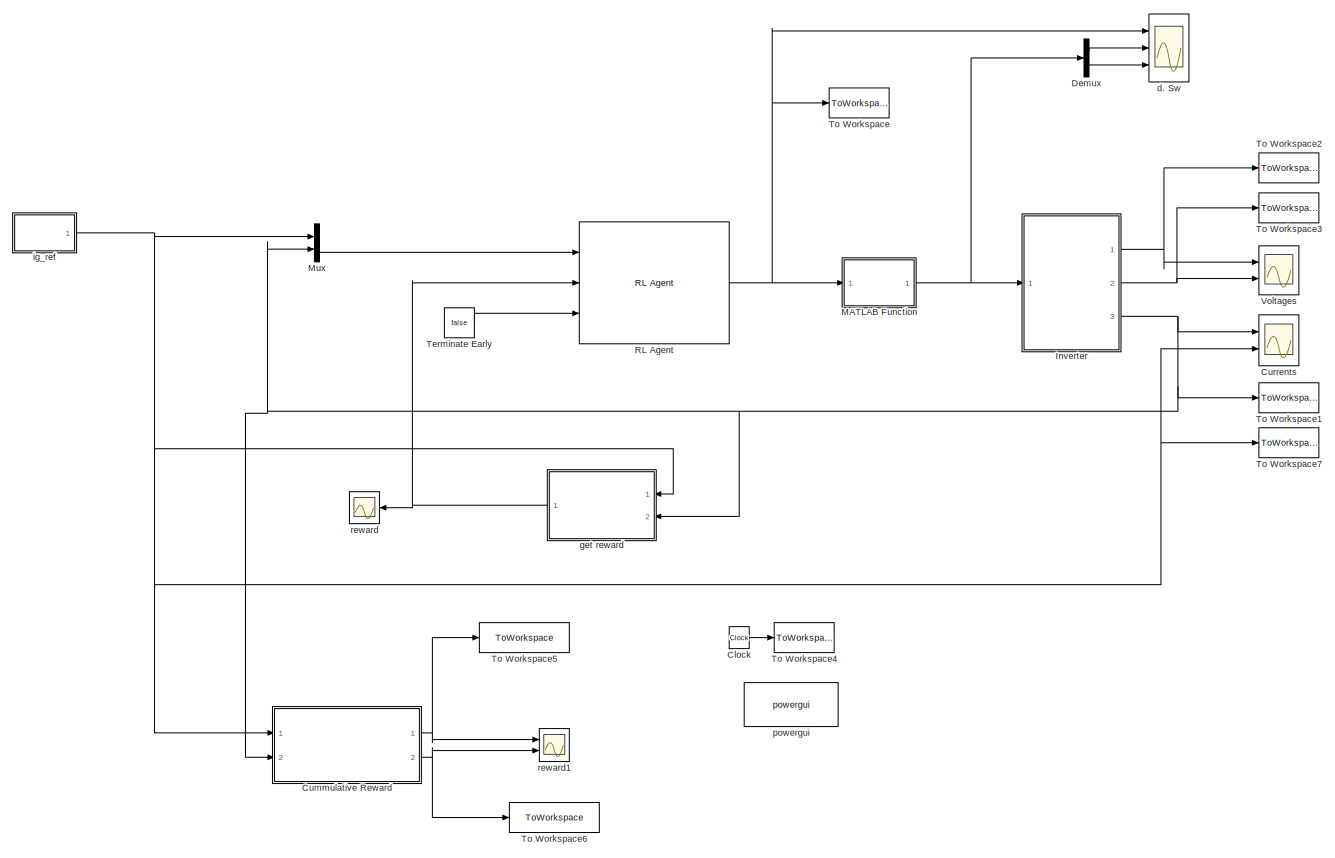
[diagram: root canvas - part 1/1, most of the canvas]
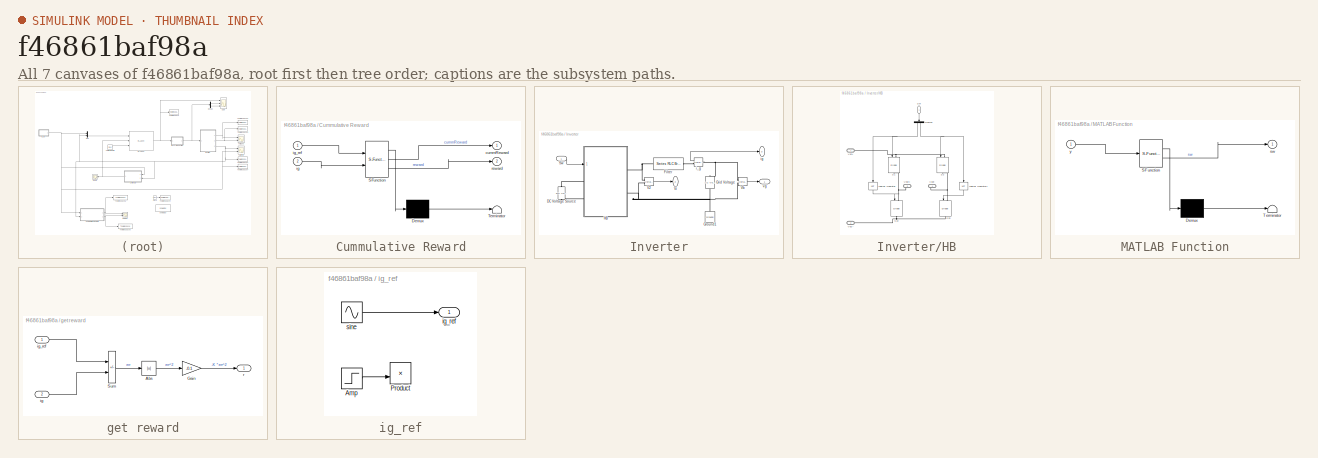
[diagram: thumbnail index - all 7 canvases of the model, root first then tree order]
MODEL slx_f46861baf98a
KIND model
CONFIG AbsTol = auto
CONFIG EnableMultiTasking = off
CONFIG FixedStep = auto
CONFIG MaxStep = auto
CONFIG MinStep = auto
CONFIG RelTol = 1e-3
CONFIG SampleTimeConstraint = Unconstrained
CONFIG SolverName = VariableStepAuto
CONFIG StartTime = 0.0
CONFIG StopTime = 0.1
BLOCK [Clock] Clock
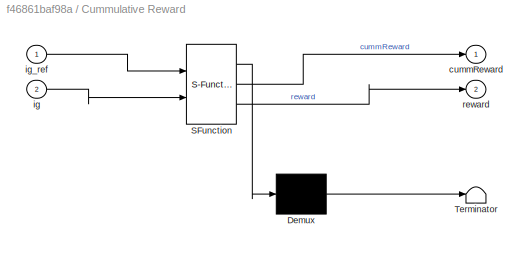
BLOCK [SubSystem] Cummulative Reward
  ErrorFcn = Stateflow.Translate.translate
  PermitHierarchicalResolution = ExplicitOnly
  Ports = [2, 2]
  RequestExecContextInheritance = off
  SFBlockType = MATLAB Function
  SystemSampleTime = Ts
  TreatAsAtomicUnit = on
BLOCK [Demux] Cummulative Reward/ Demux 
  Outputs = 1
  Ports = [1, 1]
BLOCK [S-Function] Cummulative Reward/ SFunction 
  EnableBusSupport = on
  FunctionName = sf_sfun
  PortCounts = [2 3]
  Ports = [2, 3]
  SFcnIsStateOwnerBlock = off
  SFunctionDeploymentMode = off
  Tag = Stateflow S-Function 1
BLOCK [Terminator] Cummulative Reward/ Terminator 
BLOCK [Outport] Cummulative Reward/cummReward
BLOCK [Inport] Cummulative Reward/ig
  Port = 2
BLOCK [Inport] Cummulative Reward/ig_ref
BLOCK [Outport] Cummulative Reward/reward
  Port = 2
BLOCK [Scope] Currents
  Floating = off
  NumInputPorts = 2
  Ports = [2]
  ScopeSpecificationString = Simulink.scopes.TimeScopeBlockCfg('CurrentConfiguration', extmgr.ConfigurationSet(extmgr.Configuration('Core','General UI',true),extmgr.Configuration('Core','Source UI',true),extmgr.Configuration('Sources','WiredSimulink',true,'DataLogging',true,'DataLoggingVariableName','ScopeData1'),extmgr.Configuration('Visuals','Time Domain',true,'SerializedDisplays',{struct('MinYLimReal','-27.40256','MaxYLimR...<+1559ch>
BLOCK [Demux] Demux
  Outputs = 2
  Ports = [1, 2]
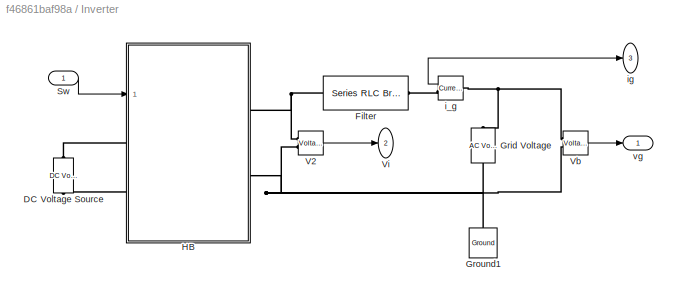
BLOCK [SubSystem] Inverter
  Ports = [1, 3]
  RequestExecContextInheritance = off
BLOCK [Reference] Inverter/DC Voltage Source  REF=spsDCVoltageSourceLib/DC Voltage Source
  NameLocation = left
  Ports = [0, 0, 0, 0, 0, 1, 1]
  SourceBlock = spsDCVoltageSourceLib/DC Voltage Source
  SourceProductBaseCode = PS
  SourceType = DC Voltage Source
BLOCK [Reference] Inverter/Filter  REF=spsSeriesRLCBranchLib/Series RLC Branch
  Ports = [0, 0, 0, 0, 0, 1, 1]
  SourceBlock = spsSeriesRLCBranchLib/Series RLC Branch
  SourceProductBaseCode = PS
  SourceType = Series RLC Branch
BLOCK [Reference] Inverter/Grid Voltage  REF=spsACVoltageSourceLib/AC Voltage Source
  NameLocation = right
  Ports = [0, 0, 0, 0, 0, 1, 1]
  SourceBlock = spsACVoltageSourceLib/AC Voltage Source
  SourceProductBaseCode = PS
  SourceType = AC Voltage Source
BLOCK [Reference] Inverter/Ground1  REF=spsGroundLib/Ground
  NameLocation = right
  Ports = [0, 0, 0, 0, 0, 1]
  SourceBlock = spsGroundLib/Ground
  SourceProductBaseCode = PS
  SourceType = Ground
BLOCK [SubSystem] Inverter/HB
  Ports = [1, 0, 0, 0, 0, 2, 2]
  RequestExecContextInheritance = off
BLOCK [Demux] Inverter/HB/Demux
  NameLocation = left
  Outputs = 2
  Ports = [1, 2]
BLOCK [Logic] Inverter/HB/Logical Operator
  AllPortsSameDT = off
  NameLocation = left
  Operator = NOT
  OutDataTypeStr = boolean
  Ports = [1, 1]
BLOCK [Logic] Inverter/HB/Logical Operator1
  AllPortsSameDT = off
  NameLocation = left
  Operator = NOT
  OutDataTypeStr = boolean
  Ports = [1, 1]
BLOCK [Reference] Inverter/HB/S1  REF=spsIGBTDiodeLib/IGBT//Diode
  NameLocation = left
  Ports = [1, 0, 0, 0, 0, 1, 1]
  SourceBlock = spsIGBTDiodeLib/IGBT//Diode
  SourceProductBaseCode = PS
  SourceType = IGBT/Diode
BLOCK [Reference] Inverter/HB/S1n  REF=spsIGBTDiodeLib/IGBT//Diode
  NameLocation = left
  Ports = [1, 0, 0, 0, 0, 1, 1]
  SourceBlock = spsIGBTDiodeLib/IGBT//Diode
  SourceProductBaseCode = PS
  SourceType = IGBT/Diode
BLOCK [Reference] Inverter/HB/S2  REF=spsIGBTDiodeLib/IGBT//Diode
  NameLocation = left
  Ports = [1, 0, 0, 0, 0, 1, 1]
  SourceBlock = spsIGBTDiodeLib/IGBT//Diode
  SourceProductBaseCode = PS
  SourceType = IGBT/Diode
BLOCK [Reference] Inverter/HB/S2n  REF=spsIGBTDiodeLib/IGBT//Diode
  NameLocation = left
  Ports = [1, 0, 0, 0, 0, 1, 1]
  SourceBlock = spsIGBTDiodeLib/IGBT//Diode
  SourceProductBaseCode = PS
  SourceType = IGBT/Diode
BLOCK [Inport] Inverter/HB/Sw
  NameLocation = left
BLOCK [PMIOPort] Inverter/HB/Vdc+
  NameLocation = top
  Side = Left
BLOCK [PMIOPort] Inverter/HB/Vdc--
  Port = 2
  Side = Left
BLOCK [PMIOPort] Inverter/HB/Vout+
  NameLocation = top
  Port = 3
  Side = Right
BLOCK [PMIOPort] Inverter/HB/Vout-
  NameLocation = top
  Port = 4
  Side = Right
BLOCK [Inport] Inverter/Sw
BLOCK [Reference] Inverter/V2  REF=spsVoltageMeasurementLib/Voltage Measurement
  AttributesFormatString = \n
  Ports = [0, 1, 0, 0, 0, 2]
  SourceBlock = spsVoltageMeasurementLib/Voltage Measurement
  SourceProductBaseCode = PS
  SourceType = Voltage Measurement
  Tag = PoWeRsYsTeMmEaSuReMeNt
BLOCK [Reference] Inverter/Vb  REF=spsVoltageMeasurementLib/Voltage Measurement
  AttributesFormatString = \n
  Ports = [0, 1, 0, 0, 0, 2]
  SourceBlock = spsVoltageMeasurementLib/Voltage Measurement
  SourceProductBaseCode = PS
  SourceType = Voltage Measurement
  Tag = PoWeRsYsTeMmEaSuReMeNt
BLOCK [Outport] Inverter/Vi
  Port = 2
  VectorParamsAs1DForOutWhenUnconnected = off
BLOCK [Reference] Inverter/i_g  REF=spsCurrentMeasurementLib/Current Measurement
  Ports = [0, 1, 0, 0, 0, 1, 1]
  SourceBlock = spsCurrentMeasurementLib/Current Measurement
  SourceProductBaseCode = PS
  SourceType = Current Measurement
  UserDataPersistent = on
BLOCK [Outport] Inverter/ig
  Port = 3
  VectorParamsAs1DForOutWhenUnconnected = off
BLOCK [Outport] Inverter/vg
  VectorParamsAs1DForOutWhenUnconnected = off
BLOCK [SubSystem] MATLAB Function
  ErrorFcn = Stateflow.Translate.translate
  PermitHierarchicalResolution = ExplicitOnly
  Ports = [1, 1]
  RequestExecContextInheritance = off
  SFBlockType = MATLAB Function
  SystemSampleTime = Ts
  TreatAsAtomicUnit = on
BLOCK [Demux] MATLAB Function/ Demux 
  Outputs = 1
  Ports = [1, 1]
BLOCK [S-Function] MATLAB Function/ SFunction 
  EnableBusSupport = on
  FunctionName = sf_sfun
  PortCounts = [1 2]
  Ports = [1, 2]
  SFcnIsStateOwnerBlock = off
  SFunctionDeploymentMode = off
  Tag = Stateflow S-Function 2
BLOCK [Terminator] MATLAB Function/ Terminator 
BLOCK [Outport] MATLAB Function/sw
BLOCK [Inport] MATLAB Function/y
BLOCK [Mux] Mux
  DisplayOption = bar
  Inputs = 2
  Ports = [2, 1]
BLOCK [Reference] RL Agent  REF=rllib/RL Agent
  Ports = [3, 1]
  SourceBlock = rllib/RL Agent
  SourceProductBaseCode = RL
  SourceType = RL Agent
BLOCK [Constant] Terminate Early
  Value = false
BLOCK [ToWorkspace] To Workspace
  FixptAsFi = on
  MaxDataPoints = inf
  Ports = [1]
  SampleTime = Ts
  VariableName = d
BLOCK [ToWorkspace] To Workspace1
  FixptAsFi = on
  MaxDataPoints = inf
  Ports = [1]
  SampleTime = Ts
  VariableName = ig
BLOCK [ToWorkspace] To Workspace2
  FixptAsFi = on
  MaxDataPoints = inf
  Ports = [1]
  SampleTime = Ts
  VariableName = vg
BLOCK [ToWorkspace] To Workspace3
  FixptAsFi = on
  MaxDataPoints = inf
  Ports = [1]
  SampleTime = Ts
  VariableName = vi
BLOCK [ToWorkspace] To Workspace4
  FixptAsFi = on
  MaxDataPoints = inf
  Ports = [1]
  SampleTime = Ts
  VariableName = time
BLOCK [ToWorkspace] To Workspace5
  FixptAsFi = on
  MaxDataPoints = inf
  Ports = [1]
  SampleTime = Ts
  VariableName = sumRewards
BLOCK [ToWorkspace] To Workspace6
  FixptAsFi = on
  MaxDataPoints = inf
  Ports = [1]
  SampleTime = Ts
  VariableName = rewards
BLOCK [ToWorkspace] To Workspace7
  FixptAsFi = on
  MaxDataPoints = inf
  Ports = [1]
  SampleTime = Ts
  VariableName = ig_ref
BLOCK [Scope] Voltages
  Floating = off
  NumInputPorts = 2
  Ports = [2]
  ScopeSpecificationString = Simulink.scopes.TimeScopeBlockCfg('CurrentConfiguration', extmgr.ConfigurationSet(extmgr.Configuration('Core','General UI',true),extmgr.Configuration('Core','Source UI',true),extmgr.Configuration('Sources','WiredSimulink',true,'DataLogging',true,'DataLoggingVariableName','ScopeData2'),extmgr.Configuration('Visuals','Time Domain',true,'SerializedDisplays',{struct('MinYLimReal','-424.26407','MaxYLim...<+2412ch>
BLOCK [Scope] d. Sw
  Floating = off
  NumInputPorts = 3
  Ports = [3]
  ScopeSpecificationString = Simulink.scopes.TimeScopeBlockCfg('CurrentConfiguration', extmgr.ConfigurationSet(extmgr.Configuration('Core','General UI',true),extmgr.Configuration('Core','Source UI',true),extmgr.Configuration('Sources','WiredSimulink',true,'DataLogging',true,'DataLoggingVariableName','ScopeData3'),extmgr.Configuration('Visuals','Time Domain',true,'SerializedDisplays',{struct('MinYLimReal','-0.375','MaxYLimReal...<+2824ch>
BLOCK [SubSystem] get reward
  Ports = [2, 1]
  RequestExecContextInheritance = off
BLOCK [Abs] get reward/Abs
  SaturateOnIntegerOverflow = off
BLOCK [Gain] get reward/Gain
  Gain = -0.1
BLOCK [Sum] get reward/Sum
  IconShape = rectangular
  Inputs = +-
  Ports = [2, 1]
BLOCK [Inport] get reward/ig
  Port = 2
BLOCK [Inport] get reward/ig_ref
BLOCK [Outport] get reward/r
BLOCK [SubSystem] ig_ref
  Ports = [0, 1]
  RequestExecContextInheritance = off
BLOCK [Step] ig_ref/Amp
  After = -Iref
  Before = Iref
  Commented = on
  SampleTime = 0
  Time = 0.055
BLOCK [Product] ig_ref/Product
  Commented = on
  Ports = [2, 1]
BLOCK [Outport] ig_ref/ig_ref
  VectorParamsAs1DForOutWhenUnconnected = off
BLOCK [Sin] ig_ref/sine
  Amplitude = Iref
  Frequency = 2*pi*fo
  Ports = [0, 1]
  SampleTime = 0
BLOCK [Reference] powergui  REF=spspowerguiLib/powergui
  Ports = []
  SourceBlock = spspowerguiLib/powergui
  SourceProductBaseCode = PS
  SourceType = PSB option menu block
BLOCK [Scope] reward
  Floating = off
  NumInputPorts = 1
  Ports = [1]
  ScopeSpecificationString = Simulink.scopes.TimeScopeBlockCfg('CurrentConfiguration', extmgr.ConfigurationSet(extmgr.Configuration('Core','General UI',true),extmgr.Configuration('Core','Source UI',true),extmgr.Configuration('Sources','WiredSimulink',true,'DataLoggingVariableName','ScopeData1'),extmgr.Configuration('Visuals','Time Domain',true,'SerializedDisplays',{struct('MinYLimReal','-0.42577','MaxYLimReal','0.04731','YLab...<+1415ch>
BLOCK [Scope] reward1
  Floating = off
  NumInputPorts = 2
  Ports = [2]
  ScopeSpecificationString = Simulink.scopes.TimeScopeBlockCfg('CurrentConfiguration', extmgr.ConfigurationSet(extmgr.Configuration('Core','General UI',true),extmgr.Configuration('Core','Source UI',true),extmgr.Configuration('Sources','WiredSimulink',true,'DataLoggingVariableName','ScopeData2'),extmgr.Configuration('Visuals','Time Domain',true,'SerializedDisplays',{struct('MinYLimReal','-93.59042','MaxYLimReal','10.39894','YL...<+2078ch>
LINE Clock:1 -> To Workspace4:1
NET Cummulative Reward:1 -> To Workspace5:1, reward1:1
NET Cummulative Reward:2 -> To Workspace6:1, reward1:2
LINE Demux:1 -> d. Sw:2
LINE Demux:2 -> d. Sw:3
NET Inverter/HB/Demux:1 -> Inverter/HB/Logical Operator:1, Inverter/HB/S1:1
NET Inverter/HB/Demux:2 -> Inverter/HB/Logical Operator1:1, Inverter/HB/S2:1
LINE Inverter/HB/Logical Operator1:1 -> Inverter/HB/S2n:1
LINE Inverter/HB/Logical Operator:1 -> Inverter/HB/S1n:1
LINE Inverter/HB/Sw:1 -> Inverter/HB/Demux:1
LINE Inverter/Sw:1 -> Inverter/HB:1
LINE Inverter/V2:1 -> Inverter/Vi:1
LINE Inverter/Vb:1 -> Inverter/vg:1
LINE Inverter/i_g:1 -> Inverter/ig:1
NET Inverter:1 -> To Workspace2:1, Voltages:1
NET Inverter:2 -> To Workspace3:1, Voltages:2
NET Inverter:3 -> Cummulative Reward:2, Currents:1, Mux:2, To Workspace1:1, get reward:2
NET MATLAB Function:1 -> Demux:1, Inverter:1
LINE Mux:1 -> RL Agent:1
NET RL Agent:1 -> MATLAB Function:1, To Workspace:1, d. Sw:1
LINE Terminate Early:1 -> RL Agent:3
LINE get reward/Abs:1 -> get reward/Gain:1
LINE get reward/Gain:1 -> get reward/r:1
LINE get reward/Sum:1 -> get reward/Abs:1
LINE get reward/ig:1 -> get reward/Sum:2
LINE get reward/ig_ref:1 -> get reward/Sum:1
NET get reward:1 -> RL Agent:2, reward:1
LINE ig_ref/Amp:1 -> ig_ref/Product:2
LINE ig_ref/sine:1 -> ig_ref/ig_ref:1
NET ig_ref:1 -> Cummulative Reward:1, Currents:2, Mux:1, To Workspace7:1, get reward:1
PLINE Inverter/DC Voltage Source:LConn1 -- Inverter/HB:LConn2
PLINE Inverter/DC Voltage Source:RConn1 -- Inverter/HB:LConn1
PNET net1: Inverter/Filter:LConn1 -- Inverter/HB:RConn1 -- Inverter/V2:LConn1
PLINE Inverter/Filter:RConn1 -- Inverter/i_g:RConn1
PNET net2: Inverter/Grid Voltage:LConn1 -- Inverter/Ground1:LConn1 -- Inverter/HB:RConn2 -- Inverter/V2:LConn2 -- Inverter/Vb:LConn2
PNET net3: Inverter/Grid Voltage:RConn1 -- Inverter/Vb:LConn1 -- Inverter/i_g:LConn1
PNET net4: Inverter/HB/S1:LConn1 -- Inverter/HB/S2:LConn1 -- Inverter/HB/Vdc+:RConn1
PNET net5: Inverter/HB/S1:RConn1 -- Inverter/HB/S1n:LConn1 -- Inverter/HB/Vout+:RConn1
PNET net6: Inverter/HB/S1n:RConn1 -- Inverter/HB/S2n:RConn1 -- Inverter/HB/Vdc--:RConn1
PNET net7: Inverter/HB/S2:RConn1 -- Inverter/HB/S2n:LConn1 -- Inverter/HB/Vout-:RConn1
note: NET lines group one-source signal fan-out (src -> all destinations, sorted); 1:1 wires keep LINE; PNET lines group multi-terminal physical nets as a canonical sorted terminal list (undirected conserving connections); 2-terminal nets keep the pairwise PLINE form
CHART MATLAB Function states=1 transitions=1
  STATE_LABEL 'eML_blk_kernel()'
  STATE_LABEL "SCRIPT:\nfunction sw = fcn(y)\n    sw = [-1 -1]';\n    switch y\n        case 0\n            sw = [0 0]';\n        case 1\n            sw = [0 1]';\n        case 2\n            sw = [1 0]';\n        case 3\n            sw = [1 1]';\n    end\nend\n"
CHART Cummulative Reward states=1 transitions=1
  STATE_LABEL 'eML_blk_kernel()'
  STATE_LABEL 'SCRIPT:\nfunction [cummReward, reward]= calcReward(ig_ref, ig)\n\n    persistent sumReward;\n    if isempty(sumReward)\n        sumReward = 0;\n    end\n    \n    % reward on this time step\n    reward = abs(ig_ref-ig)*-0.1;\n    \n    % cummulative reward\n    sumReward = sumReward+reward;\n    \n    % output to view on scope\n    cummReward = sumReward;\nend\n'
CHART  states=0 transitions=0
CHART  states=0 transitions=0
